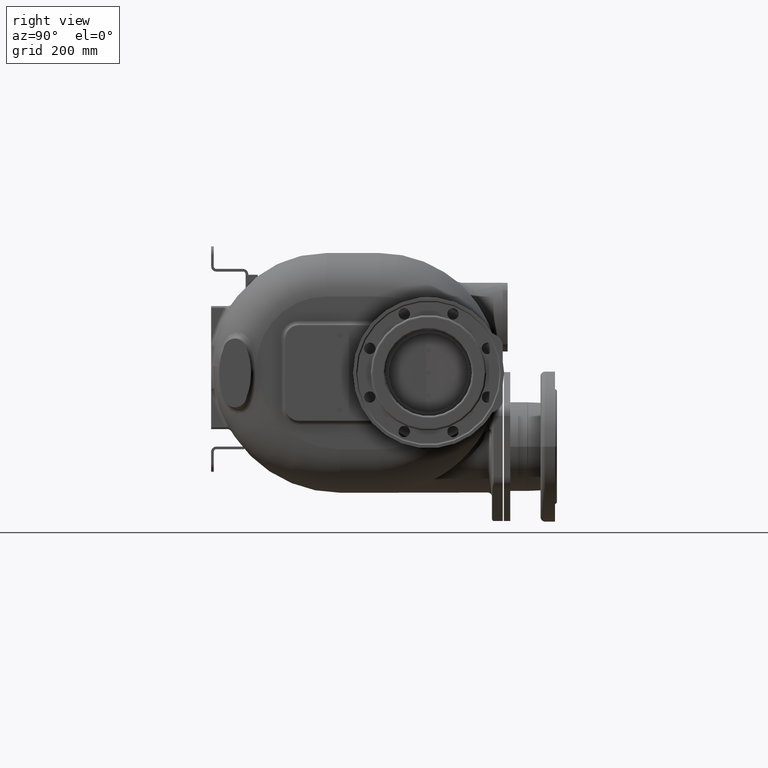
[diagram: clean part render]
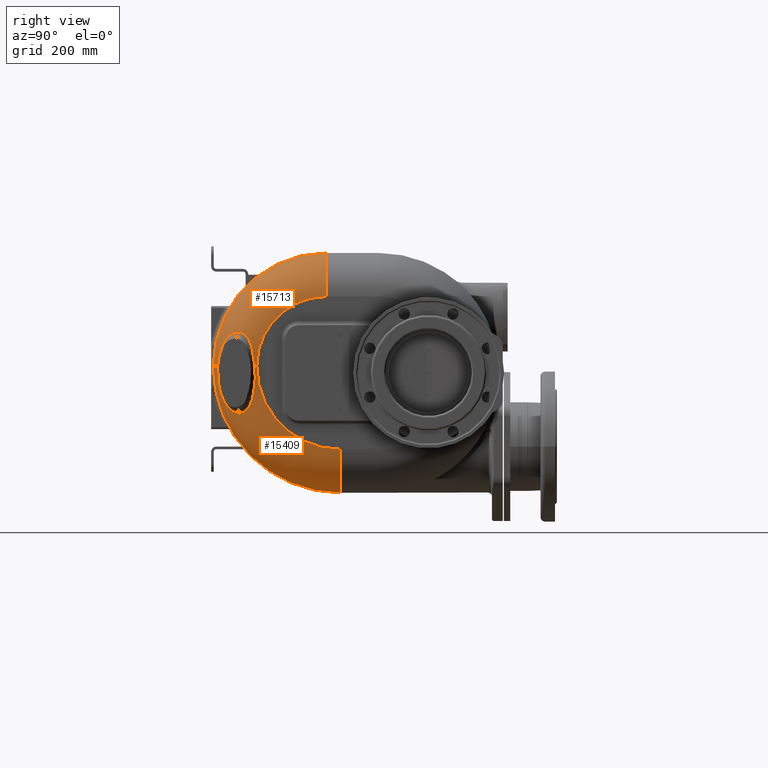
[diagram: same view with one multi-face feature highlighted, each face labeled with its STEP entity id]
A machine part, right view. The highlighted faces form ONE feature: a constant-radius fillet chain: 2 tangent blend faces with common blend radius 82 mm. The faces share edges in the B-rep.
Their STEP definitions:
[1] entity #15713 (Torus):
#2081=CARTESIAN_POINT('',(1.52E2,2.17E2,-1.3E1));
#2082=DIRECTION('',(1.E0,0.E0,0.E0));
#2083=DIRECTION('',(0.E0,0.E0,1.E0));
#2084=AXIS2_PLACEMENT_3D('',#2081,#2082,#2083);
#2678=CARTESIAN_POINT('',(1.879654239546E2,1.230815323413E1,-1.3E1));
#2849=CARTESIAN_POINT('',(2.339353656889E2,8.274487336276E1,-1.3E1));
#2851=CARTESIAN_POINT('',(1.52E2,8.6E1,-1.3E1));
#2852=DIRECTION('',(0.E0,0.E0,-1.E0));
#2853=DIRECTION('',(1.E0,0.E0,0.E0));
#2854=AXIS2_PLACEMENT_3D('',#2851,#2852,#2853);
#2856=CARTESIAN_POINT('',(1.52E2,8.6E1,-1.3E1));
#2857=DIRECTION('',(0.E0,0.E0,-1.E0));
#2858=DIRECTION('',(4.386027311538E-1,-8.986810581204E-1,0.E0));
#2859=AXIS2_PLACEMENT_3D('',#2856,#2857,#2858);
#2871=CARTESIAN_POINT('',(2.339353656889E2,8.274487336276E1,-1.3E1));
#2872=CARTESIAN_POINT('',(2.339339644732E2,8.270918535156E1,-1.256129048278E1));
#2873=CARTESIAN_POINT('',(2.339307538358E2,8.263444731143E1,-1.168397406638E1));
#2874=CARTESIAN_POINT('',(2.339248748706E2,8.251323932024E1,-1.036713794622E1));
#2875=CARTESIAN_POINT('',(2.339178202315E2,8.238424142135E1,-9.050543589567E0));
#2876=CARTESIAN_POINT('',(2.339095936351E2,8.224952458407E1,-7.739844715712E0));
#2877=CARTESIAN_POINT('',(2.339000121001E2,8.210820254393E1,-6.417769285520E0));
#2878=CARTESIAN_POINT('',(2.338883148047E2,8.195227867606E1,-5.020393056383E0));
#2879=CARTESIAN_POINT('',(2.338734936988E2,8.177392797552E1,-3.494495743191E0));
#2880=CARTESIAN_POINT('',(2.338538358736E2,8.156191228367E1,-1.775377750045E0));
#2881=CARTESIAN_POINT('',(2.338289329511E2,8.132280882452E1,5.324368321622E-2));
#2882=CARTESIAN_POINT('',(2.337992401276E2,8.106855703263E1,1.887313419874E0));
#2883=CARTESIAN_POINT('',(2.337656302920E2,8.080967314629E1,3.653805296860E0));
#2884=CARTESIAN_POINT('',(2.337275543737E2,8.054340450761E1,5.375866464324E0));
#2885=CARTESIAN_POINT('',(2.336844166229E2,8.026789856882E1,7.066487727343E0));
#2886=CARTESIAN_POINT('',(2.336357899395E2,7.998270951425E1,8.728028116095E0));
#2887=CARTESIAN_POINT('',(2.335815502860E2,7.968902893449E1,1.035333559501E1));
#2888=CARTESIAN_POINT('',(2.335216481662E2,7.938801502104E1,1.193744209344E1));
#2889=CARTESIAN_POINT('',(2.334559376270E2,7.907993084541E1,1.347967238423E1));
#2890=CARTESIAN_POINT('',(2.333843044380E2,7.876507160544E1,1.497973951607E1));
#2891=CARTESIAN_POINT('',(2.333066912429E2,7.844383220158E1,1.643721364817E1));
#2892=CARTESIAN_POINT('',(2.332230771701E2,7.811651043918E1,1.785149341278E1));
#2893=CARTESIAN_POINT('',(2.331335127621E2,7.778360178184E1,1.922202328566E1));
#2894=CARTESIAN_POINT('',(2.330380774816E2,7.744552878494E1,2.054856448182E1));
#2895=CARTESIAN_POINT('',(2.329368645141E2,7.710259193413E1,2.183111608475E1));
#2896=CARTESIAN_POINT('',(2.328300472482E2,7.675533797245E1,2.306963781450E1));
#2897=CARTESIAN_POINT('',(2.327177076246E2,7.640385501058E1,2.426530876193E1));
#2898=CARTESIAN_POINT('',(2.325999193408E2,7.604816075520E1,2.541938724040E1));
#2899=CARTESIAN_POINT('',(2.324767596776E2,7.568833425724E1,2.653342457296E1));
#2900=CARTESIAN_POINT('',(2.323481518404E2,7.532400015638E1,2.761015024374E1));
#2901=CARTESIAN_POINT('',(2.322139510086E2,7.495464611099E1,2.865237911781E1));
#2902=CARTESIAN_POINT('',(2.320740892132E2,7.458006964310E1,2.966207516733E1));
#2903=CARTESIAN_POINT('',(2.319286400776E2,7.420042738371E1,3.063998031404E1));
#2904=CARTESIAN_POINT('',(2.317776356035E2,7.381577752907E1,3.158720374411E1));
#2905=CARTESIAN_POINT('',(2.316211979662E2,7.342641366714E1,3.250432554186E1));
#2906=CARTESIAN_POINT('',(2.314594500652E2,7.303251104768E1,3.339169495827E1));
#2907=CARTESIAN_POINT('',(2.312925490605E2,7.263438612798E1,3.424979410977E1));
#2908=CARTESIAN_POINT('',(2.311205674178E2,7.223213280471E1,3.507955722668E1));
#2909=CARTESIAN_POINT('',(2.309435207764E2,7.182564430214E1,3.588189817660E1));
#2910=CARTESIAN_POINT('',(2.307614536523E2,7.141498320171E1,3.665779853056E1));
#2911=CARTESIAN_POINT('',(2.305744059701E2,7.100014094816E1,3.740801023703E1));
#2912=CARTESIAN_POINT('',(2.303823834907E2,7.058101870809E1,3.813329278474E1));
#2913=CARTESIAN_POINT('',(2.301854128517E2,7.015765656594E1,3.883450025605E1));
#2914=CARTESIAN_POINT('',(2.299834664731E2,6.972990349414E1,3.951237462571E1));
#2915=CARTESIAN_POINT('',(2.297764929224E2,6.929758768996E1,4.016768800060E1));
#2916=CARTESIAN_POINT('',(2.295644542256E2,6.886062572936E1,4.080121378226E1));
#2917=CARTESIAN_POINT('',(2.293472636159E2,6.841877867717E1,4.141360068403E1));
#2918=CARTESIAN_POINT('',(2.291248160681E2,6.797182142857E1,4.200554421702E1));
#2919=CARTESIAN_POINT('',(2.288970437834E2,6.751962679026E1,4.257758137256E1));
#2920=CARTESIAN_POINT('',(2.286638501019E2,6.706198749251E1,4.313016548819E1));
#2921=CARTESIAN_POINT('',(2.284250912509E2,6.659864058606E1,4.366384501044E1));
#2922=CARTESIAN_POINT('',(2.281805225759E2,6.612914416089E1,4.417929049786E1));
#2923=CARTESIAN_POINT('',(2.279297836645E2,6.565284767876E1,4.467722306659E1));
#2924=CARTESIAN_POINT('',(2.276728614600E2,6.516978432006E1,4.515756570396E1));
#2925=CARTESIAN_POINT('',(2.274100852436E2,6.468063576325E1,4.561971974209E1));
#2926=CARTESIAN_POINT('',(2.271417263251E2,6.418592589584E1,4.606325385210E1));
#2927=CARTESIAN_POINT('',(2.268682170688E2,6.368646818606E1,4.648762737945E1));
#2928=CARTESIAN_POINT('',(2.265900742769E2,6.318321790210E1,4.689238022163E1));
#2929=CARTESIAN_POINT('',(2.263077047150E2,6.267685632582E1,4.727725715181E1));
#2930=CARTESIAN_POINT('',(2.260209648776E2,6.216711793744E1,4.764290213848E1));
#2931=CARTESIAN_POINT('',(2.257297265756E2,6.165376263078E1,4.798979667899E1));
#2932=CARTESIAN_POINT('',(2.254338632679E2,6.113653951493E1,4.831828588991E1));
#2933=CARTESIAN_POINT('',(2.251332982868E2,6.061534301880E1,4.862872200350E1));
#2934=CARTESIAN_POINT('',(2.248279083304E2,6.008995198208E1,4.892134581685E1));
#2935=CARTESIAN_POINT('',(2.245175844838E2,5.956019122943E1,4.919635925460E1));
#2936=CARTESIAN_POINT('',(2.242022110069E2,5.902590062920E1,4.945397058890E1));
#2937=CARTESIAN_POINT('',(2.238816515772E2,5.848685258882E1,4.969425165832E1));
#2938=CARTESIAN_POINT('',(2.235558123510E2,5.794293871916E1,4.99172995E1));
#2939=CARTESIAN_POINT('',(2.232245895577E2,5.739401697714E1,5.012312469782E1));
#2940=CARTESIAN_POINT('',(2.228878748252E2,5.683993559182E1,5.031168277857E1));
#2941=CARTESIAN_POINT('',(2.225455628529E2,5.628058327930E1,5.048296771954E1));
#2942=CARTESIAN_POINT('',(2.221975363779E2,5.571579241819E1,5.063683661134E1));
#2943=CARTESIAN_POINT('',(2.218437344921E2,5.514552692718E1,5.077317893754E1));
#2944=CARTESIAN_POINT('',(2.214841588766E2,5.456984548299E1,5.089182398781E1));
#2945=CARTESIAN_POINT('',(2.211188166099E2,5.398877929814E1,5.099250061878E1));
#2946=CARTESIAN_POINT('',(2.207477099993E2,5.340240239487E1,5.107505531257E1));
#2947=CARTESIAN_POINT('',(2.204964858468E2,5.300800675888E1,5.111785080806E1));
#2948=CARTESIAN_POINT('',(2.203699161142E2,5.280994129624E1,5.113614340283E1));
#2950=CARTESIAN_POINT('',(2.203699161142E2,5.280994129624E1,5.113614340283E1));
#2951=CARTESIAN_POINT('',(2.202355517051E2,5.259968005971E1,5.115556259065E1));
#2952=CARTESIAN_POINT('',(2.199644954461E2,5.217714172881E1,5.118797655465E1));
#2953=CARTESIAN_POINT('',(2.195508804671E2,5.153731362659E1,5.121695989171E1));
#2954=CARTESIAN_POINT('',(2.191302842757E2,5.089161747689E1,5.122596117740E1));
#2955=CARTESIAN_POINT('',(2.187027447084E2,5.024019457364E1,5.121462866742E1));
#2956=CARTESIAN_POINT('',(2.182683175963E2,4.958319534821E1,5.118257060104E1));
#2957=CARTESIAN_POINT('',(2.178270752906E2,4.892078522302E1,5.112937018453E1));
#2958=CARTESIAN_POINT('',(2.173791715685E2,4.825325607924E1,5.105464352236E1));
#2959=CARTESIAN_POINT('',(2.169248260340E2,4.758097498180E1,5.095799038534E1));
#2960=CARTESIAN_POINT('',(2.164642743613E2,4.690432853518E1,5.083904665784E1));
#2961=CARTESIAN_POINT('',(2.159977076950E2,4.622361675230E1,5.069741657564E1));
#2962=CARTESIAN_POINT('',(2.155253400082E2,4.553916222422E1,5.053270803912E1));
#2963=CARTESIAN_POINT('',(2.150474041747E2,4.485130835182E1,5.034454790076E1));
#2964=CARTESIAN_POINT('',(2.145641463825E2,4.416039643838E1,5.013254082303E1));
#2965=CARTESIAN_POINT('',(2.140758391789E2,4.346680435508E1,4.989633194563E1));
#2966=CARTESIAN_POINT('',(2.135827540378E2,4.277088650493E1,4.963553908855E1));
#2967=CARTESIAN_POINT('',(2.130851614447E2,4.207298571753E1,4.934977864852E1));
#2968=CARTESIAN_POINT('',(2.125833594714E2,4.137348053038E1,4.903870257456E1));
#2969=CARTESIAN_POINT('',(2.120776264426E2,4.067269569151E1,4.870190339819E1));
#2970=CARTESIAN_POINT('',(2.115682485114E2,3.997097348886E1,4.833901633601E1));
#2971=CARTESIAN_POINT('',(2.110555319002E2,3.926866514178E1,4.794965848575E1));
#2972=CARTESIAN_POINT('',(2.105397446443E2,3.856605775487E1,4.753339813580E1));
#2973=CARTESIAN_POINT('',(2.100211791531E2,3.786348251660E1,4.708986181020E1));
#2974=CARTESIAN_POINT('',(2.095001244037E2,3.716123454785E1,4.661858934816E1));
#2975=CARTESIAN_POINT('',(2.089768261650E2,3.645956512023E1,4.611912046568E1));
#2976=CARTESIAN_POINT('',(2.084515717114E2,3.575877841253E1,4.559101802805E1));
#2977=CARTESIAN_POINT('',(2.079246178956E2,3.505911240452E1,4.503372717564E1));
#2978=CARTESIAN_POINT('',(2.073961977937E2,3.436080897712E1,4.444675373900E1));
#2979=CARTESIAN_POINT('',(2.068665961006E2,3.366414721521E1,4.382954065504E1));
#2980=CARTESIAN_POINT('',(2.063360213508E2,3.296931637218E1,4.318144414518E1));
#2981=CARTESIAN_POINT('',(2.058047027587E2,3.227656122988E1,4.250189044186E1));
#2982=CARTESIAN_POINT('',(2.052728940477E2,3.158611582031E1,4.179015341074E1));
#2983=CARTESIAN_POINT('',(2.047407573903E2,3.089814434724E1,4.104548587728E1));
#2984=CARTESIAN_POINT('',(2.042085208540E2,3.021289865126E1,4.026716732901E1));
#2985=CARTESIAN_POINT('',(2.036763940355E2,2.953058091944E1,3.945428812079E1));
#2986=CARTESIAN_POINT('',(2.031445256708E2,2.885138762914E1,3.860600305143E1));
#2987=CARTESIAN_POINT('',(2.026131611364E2,2.817560414608E1,3.772139740813E1));
#2988=CARTESIAN_POINT('',(2.020824644044E2,2.750343857116E1,3.679940892308E1));
#2989=CARTESIAN_POINT('',(2.015526038285E2,2.683516378554E1,3.583906911427E1));
#2990=CARTESIAN_POINT('',(2.010238282915E2,2.617110833592E1,3.483924698788E1));
#2991=CARTESIAN_POINT('',(2.004962870865E2,2.551155164353E1,3.379876717935E1));
#2992=CARTESIAN_POINT('',(1.999701917820E2,2.485688017004E1,3.271651960623E1));
#2993=CARTESIAN_POINT('',(1.994457916515E2,2.420750162905E1,3.159118991135E1));
#2994=CARTESIAN_POINT('',(1.989232518480E2,2.356382868891E1,3.042153932221E1));
#2995=CARTESIAN_POINT('',(1.984028472202E2,2.292639702719E1,2.920630234250E1));
#2996=CARTESIAN_POINT('',(1.978848334432E2,2.229575222162E1,2.794408981621E1));
#2997=CARTESIAN_POINT('',(1.973694225780E2,2.167249351980E1,2.663363988729E1));
#2998=CARTESIAN_POINT('',(1.968569616203E2,2.105735104079E1,2.527360680169E1));
#2999=CARTESIAN_POINT('',(1.963477426195E2,2.045108144680E1,2.386267689546E1));
#3000=CARTESIAN_POINT('',(1.958420414435E2,1.985451091179E1,2.239963560414E1));
#3001=CARTESIAN_POINT('',(1.953403086964E2,1.926863760247E1,2.088326811754E1));
#3002=CARTESIAN_POINT('',(1.948428729198E2,1.869446400472E1,1.931250183827E1));
#3003=CARTESIAN_POINT('',(1.943501258600E2,1.813310645740E1,1.768634615939E1));
#3004=CARTESIAN_POINT('',(1.938626439778E2,1.758588809763E1,1.600407376614E1));
#3005=CARTESIAN_POINT('',(1.933807928541E2,1.705406625130E1,1.426505908699E1));
#3006=CARTESIAN_POINT('',(1.929051663265E2,1.653912214458E1,1.246896454102E1));
#3007=CARTESIAN_POINT('',(1.924364460983E2,1.604267444894E1,1.061591930933E1));
#3008=CARTESIAN_POINT('',(1.919750507736E2,1.556621331966E1,8.706057921342E0));
#3009=CARTESIAN_POINT('',(1.915218840986E2,1.511160630259E1,6.740329052153E0));
#3010=CARTESIAN_POINT('',(1.910776705650E2,1.468063171606E1,4.720072552911E0));
#3011=CARTESIAN_POINT('',(1.906430190465E2,1.427499525747E1,2.646786215604E0));
#3012=CARTESIAN_POINT('',(1.902191792420E2,1.389681565326E1,5.236263410973E-1));
#3013=CARTESIAN_POINT('',(1.898068135713E2,1.354777004749E1,-1.646410742775E0));
#3014=CARTESIAN_POINT('',(1.894071186577E2,1.322978380528E1,-3.858886386441E0));
#3015=CARTESIAN_POINT('',(1.890217867045E2,1.294492226024E1,-6.107075375706E0));
#3016=CARTESIAN_POINT('',(1.886516205833E2,1.269449480305E1,-8.384185335522E0));
#3017=CARTESIAN_POINT('',(1.882980102670E2,1.247983622596E1,-1.068410366528E1));
#3018=CARTESIAN_POINT('',(1.880743577142E2,1.236131586702E1,-1.222630023022E1));
#3019=CARTESIAN_POINT('',(1.879654239546E2,1.230815323413E1,-1.3E1));
#3021=CARTESIAN_POINT('',(1.52E2,2.17E2,1.18E2));
#3022=DIRECTION('',(0.E0,-1.E0,0.E0));
#3023=DIRECTION('',(1.E0,0.E0,0.E0));
#3024=AXIS2_PLACEMENT_3D('',#3021,#3022,#3023);
#3394=CARTESIAN_POINT('',(2.34E2,2.17E2,-1.3E1));
#3395=DIRECTION('',(1.E0,0.E0,0.E0));
#3396=DIRECTION('',(0.E0,0.E0,1.E0));
#3397=AXIS2_PLACEMENT_3D('',#3394,#3395,#3396);
#10940=CARTESIAN_POINT('',(1.52E2,2.170000000004E2,2.E2));
#10942=VERTEX_POINT('',#10940);
#10997=CARTESIAN_POINT('',(2.34E2,8.6E1,-1.3E1));
#10998=VERTEX_POINT('',#10997);
#10999=CARTESIAN_POINT('',(1.52E2,4.E0,-1.3E1));
#11000=VERTEX_POINT('',#10999);
#11001=CARTESIAN_POINT('',(2.34E2,2.17E2,1.18E2));
#11002=VERTEX_POINT('',#11001);
#11005=VERTEX_POINT('',#2678);
#11008=VERTEX_POINT('',#2849);
#11010=VERTEX_POINT('',#2948);
#15696=CARTESIAN_POINT('',(1.52E2,2.17E2,-1.3E1));
#15697=DIRECTION('',(-1.E0,0.E0,0.E0));
#15698=DIRECTION('',(0.E0,7.929630381461E-3,9.999685599868E-1));
#15699=AXIS2_PLACEMENT_3D('',#15696,#15697,#15698);
#15700=TOROIDAL_SURFACE('',#15699,1.31E2,8.2E1);
#15702=ORIENTED_EDGE('',*,*,#15701,.T.);
#15703=ORIENTED_EDGE('',*,*,#15686,.T.);
#15704=ORIENTED_EDGE('',*,*,#15405,.T.);
#15705=ORIENTED_EDGE('',*,*,#14891,.F.);
#15707=ORIENTED_EDGE('',*,*,#15706,.F.);
#15709=ORIENTED_EDGE('',*,*,#15708,.T.);
#15710=ORIENTED_EDGE('',*,*,#15398,.T.);
#15711=EDGE_LOOP('',(#15702,#15703,#15704,#15705,#15707,#15709,#15710));
#15712=FACE_OUTER_BOUND('',#15711,.F.);
#15713=ADVANCED_FACE('',(#15712),#15700,.T.);
#2085=CIRCLE('',#2084,2.13E2);
#2855=CIRCLE('',#2854,8.2E1);
#2860=CIRCLE('',#2859,8.2E1);
#2949=B_SPLINE_CURVE_WITH_KNOTS('',3,(#2871,#2872,#2873,#2874,#2875,#2876,#2877,
#2878,#2879,#2880,#2881,#2882,#2883,#2884,#2885,#2886,#2887,#2888,#2889,#2890,
#2891,#2892,#2893,#2894,#2895,#2896,#2897,#2898,#2899,#2900,#2901,#2902,#2903,
#2904,#2905,#2906,#2907,#2908,#2909,#2910,#2911,#2912,#2913,#2914,#2915,#2916,
#2917,#2918,#2919,#2920,#2921,#2922,#2923,#2924,#2925,#2926,#2927,#2928,#2929,
#2930,#2931,#2932,#2933,#2934,#2935,#2936,#2937,#2938,#2939,#2940,#2941,#2942,
#2943,#2944,#2945,#2946,#2947,#2948),.UNSPECIFIED.,.F.,.F.,(4,1,1,1,1,1,1,1,1,1,
1,1,1,1,1,1,1,1,1,1,1,1,1,1,1,1,1,1,1,1,1,1,1,1,1,1,1,1,1,1,1,1,1,1,1,1,1,1,1,1,
1,1,1,1,1,1,1,1,1,1,1,1,1,1,1,1,1,1,1,1,1,1,1,1,1,4),(0.E0,1.333333333333E-2,
2.666666666667E-2,4.E-2,5.333333333333E-2,6.666666666667E-2,8.E-2,
9.333333333333E-2,1.066666666667E-1,1.2E-1,1.333333333333E-1,1.466666666667E-1,
1.6E-1,1.733333333333E-1,1.866666666667E-1,2.E-1,2.133333333333E-1,
2.266666666667E-1,2.4E-1,2.533333333333E-1,2.666666666667E-1,2.8E-1,
2.933333333333E-1,3.066666666667E-1,3.2E-1,3.333333333333E-1,3.466666666667E-1,
3.6E-1,3.733333333333E-1,3.866666666667E-1,4.E-1,4.133333333333E-1,
4.266666666667E-1,4.4E-1,4.533333333333E-1,4.666666666667E-1,4.8E-1,
4.933333333333E-1,5.066666666667E-1,5.2E-1,5.333333333333E-1,5.466666666667E-1,
5.6E-1,5.733333333333E-1,5.866666666667E-1,6.E-1,6.133333333333E-1,
6.266666666667E-1,6.4E-1,6.533333333333E-1,6.666666666667E-1,6.8E-1,
6.933333333333E-1,7.066666666667E-1,7.2E-1,7.333333333333E-1,7.466666666667E-1,
7.6E-1,7.733333333333E-1,7.866666666667E-1,8.E-1,8.133333333333E-1,
8.266666666667E-1,8.4E-1,8.533333333333E-1,8.666666666667E-1,8.8E-1,
8.933333333333E-1,9.066666666667E-1,9.2E-1,9.333333333333E-1,9.466666666667E-1,
9.6E-1,9.733333333333E-1,9.866666666667E-1,1.E0),.UNSPECIFIED.);
#3020=B_SPLINE_CURVE_WITH_KNOTS('',3,(#2950,#2951,#2952,#2953,#2954,#2955,#2956,
#2957,#2958,#2959,#2960,#2961,#2962,#2963,#2964,#2965,#2966,#2967,#2968,#2969,
#2970,#2971,#2972,#2973,#2974,#2975,#2976,#2977,#2978,#2979,#2980,#2981,#2982,
#2983,#2984,#2985,#2986,#2987,#2988,#2989,#2990,#2991,#2992,#2993,#2994,#2995,
#2996,#2997,#2998,#2999,#3000,#3001,#3002,#3003,#3004,#3005,#3006,#3007,#3008,
#3009,#3010,#3011,#3012,#3013,#3014,#3015,#3016,#3017,#3018,#3019),
.UNSPECIFIED.,.F.,.F.,(4,1,1,1,1,1,1,1,1,1,1,1,1,1,1,1,1,1,1,1,1,1,1,1,1,1,1,1,
1,1,1,1,1,1,1,1,1,1,1,1,1,1,1,1,1,1,1,1,1,1,1,1,1,1,1,1,1,1,1,1,1,1,1,1,1,1,1,
4),(0.E0,1.492537313433E-2,2.985074626866E-2,4.477611940299E-2,
5.970149253731E-2,7.462686567164E-2,8.955223880597E-2,1.044776119403E-1,
1.194029850746E-1,1.343283582090E-1,1.492537313433E-1,1.641791044776E-1,
1.791044776119E-1,1.940298507463E-1,2.089552238806E-1,2.238805970149E-1,
2.388059701493E-1,2.537313432836E-1,2.686567164179E-1,2.835820895522E-1,
2.985074626866E-1,3.134328358209E-1,3.283582089552E-1,3.432835820896E-1,
3.582089552239E-1,3.731343283582E-1,3.880597014925E-1,4.029850746269E-1,
4.179104477612E-1,4.328358208955E-1,4.477611940299E-1,4.626865671642E-1,
4.776119402985E-1,4.925373134328E-1,5.074626865672E-1,5.223880597015E-1,
5.373134328358E-1,5.522388059701E-1,5.671641791045E-1,5.820895522388E-1,
5.970149253731E-1,6.119402985075E-1,6.268656716418E-1,6.417910447761E-1,
6.567164179104E-1,6.716417910448E-1,6.865671641791E-1,7.014925373134E-1,
7.164179104478E-1,7.313432835821E-1,7.462686567164E-1,7.611940298507E-1,
7.761194029851E-1,7.910447761194E-1,8.059701492537E-1,8.208955223881E-1,
8.358208955224E-1,8.507462686567E-1,8.656716417910E-1,8.805970149254E-1,
8.955223880597E-1,9.104477611940E-1,9.253731343284E-1,9.402985074627E-1,
9.552238805970E-1,9.701492537313E-1,9.850746268657E-1,1.E0),.UNSPECIFIED.);
#3025=CIRCLE('',#3024,8.2E1);
#3398=CIRCLE('',#3397,1.31E2);
#14891=EDGE_CURVE('',#10942,#11000,#2085,.T.);
#15398=EDGE_CURVE('',#10998,#11008,#2855,.T.);
#15405=EDGE_CURVE('',#11005,#11000,#2860,.T.);
#15686=EDGE_CURVE('',#11010,#11005,#3020,.T.);
#15701=EDGE_CURVE('',#11008,#11010,#2949,.T.);
#15706=EDGE_CURVE('',#11002,#10942,#3025,.T.);
#15708=EDGE_CURVE('',#11002,#10998,#3398,.T.);
[2] entity #15409 (Torus):
#2457=CARTESIAN_POINT('',(1.52E2,2.43E2,-1.3E1));
#2458=DIRECTION('',(1.E0,0.E0,0.E0));
#2459=DIRECTION('',(0.E0,-1.E0,0.E0));
#2460=AXIS2_PLACEMENT_3D('',#2457,#2458,#2459);
#2678=CARTESIAN_POINT('',(1.879654239546E2,1.230815323413E1,-1.3E1));
#2679=CARTESIAN_POINT('',(1.878597585176E2,1.225661739816E1,-1.376026139655E1));
#2680=CARTESIAN_POINT('',(1.876545075377E2,1.216445605205E1,-1.529365468113E1));
#2681=CARTESIAN_POINT('',(1.873644305637E2,1.206021145663E1,-1.763844126785E1));
#2682=CARTESIAN_POINT('',(1.870946353069E2,1.199151920316E1,-2.000795915639E1));
#2683=CARTESIAN_POINT('',(1.868476390603E2,1.195950947066E1,-2.238924805052E1));
#2684=CARTESIAN_POINT('',(1.866261787234E2,1.196481531273E1,-2.476795072151E1));
#2685=CARTESIAN_POINT('',(1.864304068121E2,1.200620604473E1,-2.712859249586E1));
#2686=CARTESIAN_POINT('',(1.862606852467E2,1.208243736793E1,-2.946257015232E1));
#2687=CARTESIAN_POINT('',(1.861179847224E2,1.219270973709E1,-3.176662612475E1));
#2688=CARTESIAN_POINT('',(1.860030004942E2,1.233585356926E1,-3.403581585273E1));
#2689=CARTESIAN_POINT('',(1.859140995412E2,1.251020644171E1,-3.627229463211E1));
#2690=CARTESIAN_POINT('',(1.858508492987E2,1.271497327613E1,-3.847958321223E1));
#2691=CARTESIAN_POINT('',(1.858140097635E2,1.294990102673E1,-4.065945579635E1));
#2692=CARTESIAN_POINT('',(1.858036471050E2,1.321338656094E1,-4.280483932065E1));
#2693=CARTESIAN_POINT('',(1.858193349035E2,1.350340534314E1,-4.490898406715E1));
#2694=CARTESIAN_POINT('',(1.858602276142E2,1.381798083486E1,-4.696811214862E1));
#2695=CARTESIAN_POINT('',(1.859257219766E2,1.415579176392E1,-4.898239632569E1));
#2696=CARTESIAN_POINT('',(1.860156626992E2,1.451565976184E1,-5.095122830451E1));
#2697=CARTESIAN_POINT('',(1.861294548987E2,1.489631618372E1,-5.287448945332E1));
#2698=CARTESIAN_POINT('',(1.862663673200E2,1.529649603582E1,-5.475217975887E1));
#2699=CARTESIAN_POINT('',(1.864258386185E2,1.571505983844E1,-5.658430911266E1));
#2700=CARTESIAN_POINT('',(1.866070983612E2,1.615078314963E1,-5.837074012507E1));
#2701=CARTESIAN_POINT('',(1.868094743284E2,1.660252123434E1,-6.011134169477E1));
#2702=CARTESIAN_POINT('',(1.870323306568E2,1.706929118191E1,-6.180650401040E1));
#2703=CARTESIAN_POINT('',(1.872749644562E2,1.755023081781E1,-6.345708833395E1));
#2704=CARTESIAN_POINT('',(1.875367340674E2,1.804455879828E1,-6.506392207577E1));
#2705=CARTESIAN_POINT('',(1.878169921634E2,1.855148627307E1,-6.662758782149E1));
#2706=CARTESIAN_POINT('',(1.881150473804E2,1.907027267473E1,-6.814877954289E1));
#2707=CARTESIAN_POINT('',(1.884302620969E2,1.960026472696E1,-6.962825701787E1));
#2708=CARTESIAN_POINT('',(1.887620625203E2,2.014090757351E1,-7.106686328600E1));
#2709=CARTESIAN_POINT('',(1.891097841148E2,2.069166002071E1,-7.246550120923E1));
#2710=CARTESIAN_POINT('',(1.894729005287E2,2.125204077906E1,-7.382487416988E1));
#2711=CARTESIAN_POINT('',(1.898508006554E2,2.182160480083E1,-7.514584364394E1));
#2712=CARTESIAN_POINT('',(1.902429174931E2,2.239993006809E1,-7.642913956962E1));
#2713=CARTESIAN_POINT('',(1.906487657760E2,2.298668212880E1,-7.767552398689E1));
#2714=CARTESIAN_POINT('',(1.910677309314E2,2.358149082989E1,-7.888576985654E1));
#2715=CARTESIAN_POINT('',(1.914993887899E2,2.418407400324E1,-8.006049016546E1));
#2716=CARTESIAN_POINT('',(1.919431589135E2,2.479413239588E1,-8.120044158352E1));
#2717=CARTESIAN_POINT('',(1.923985819351E2,2.541139638984E1,-8.230617130400E1));
#2718=CARTESIAN_POINT('',(1.928651857984E2,2.603564341109E1,-8.337832324793E1));
#2719=CARTESIAN_POINT('',(1.933424336183E2,2.666660367838E1,-8.441744942416E1));
#2720=CARTESIAN_POINT('',(1.938299299948E2,2.730409112773E1,-8.542403707852E1));
#2721=CARTESIAN_POINT('',(1.943271213579E2,2.794786142266E1,-8.639863773790E1));
#2722=CARTESIAN_POINT('',(1.948335981261E2,2.859771554665E1,-8.734162710397E1));
#2723=CARTESIAN_POINT('',(1.953488656957E2,2.925345138207E1,-8.825348756290E1));
#2724=CARTESIAN_POINT('',(1.958724358894E2,2.991483319014E1,-8.913456287121E1));
#2725=CARTESIAN_POINT('',(1.964038807066E2,3.058167722996E1,-8.998520288461E1));
#2726=CARTESIAN_POINT('',(1.969426614428E2,3.125373265E1,-9.080575660705E1));
#2727=CARTESIAN_POINT('',(1.974883329299E2,3.193077794390E1,-9.159646458358E1));
#2728=CARTESIAN_POINT('',(1.980403872834E2,3.261257719266E1,-9.235763417658E1));
#2729=CARTESIAN_POINT('',(1.985983022457E2,3.329884725413E1,-9.308947245096E1));
#2730=CARTESIAN_POINT('',(1.991615999645E2,3.398934045332E1,-9.379219562082E1));
#2731=CARTESIAN_POINT('',(1.997297269668E2,3.468374915328E1,-9.446601459163E1));
#2732=CARTESIAN_POINT('',(2.003021514860E2,3.538175278354E1,-9.511108032380E1));
#2733=CARTESIAN_POINT('',(2.008783483699E2,3.608304335041E1,-9.572757770097E1));
#2734=CARTESIAN_POINT('',(2.014577339299E2,3.678723927880E1,-9.631564482181E1));
#2735=CARTESIAN_POINT('',(2.020397495650E2,3.749396914457E1,-9.687542552239E1));
#2736=CARTESIAN_POINT('',(2.026238254747E2,3.820284364194E1,-9.740707225209E1));
#2737=CARTESIAN_POINT('',(2.032093543361E2,3.891341207285E1,-9.791070315365E1));
#2738=CARTESIAN_POINT('',(2.037957504804E2,3.962524187092E1,-9.838647956135E1));
#2739=CARTESIAN_POINT('',(2.043824146731E2,4.033786315133E1,-9.883454646342E1));
#2740=CARTESIAN_POINT('',(2.049687380954E2,4.105077935082E1,-9.925505753493E1));
#2741=CARTESIAN_POINT('',(2.055541282094E2,4.176350713256E1,-9.964821632690E1));
#2742=CARTESIAN_POINT('',(2.061379865001E2,4.247552087592E1,-1.000141961098E2));
#2743=CARTESIAN_POINT('',(2.067197219131E2,4.318629601595E1,-1.003532162417E2));
#2744=CARTESIAN_POINT('',(2.072987562516E2,4.389531072899E1,-1.006655341026E2));
#2745=CARTESIAN_POINT('',(2.078745255877E2,4.460201882071E1,-1.009513812227E2));
#2746=CARTESIAN_POINT('',(2.084464810763E2,4.530589430924E1,-1.012110631288E2));
#2747=CARTESIAN_POINT('',(2.090140817589E2,4.600639470948E1,-1.014448930689E2));
#2748=CARTESIAN_POINT('',(2.095768072804E2,4.670296339661E1,-1.016531692826E2));
#2749=CARTESIAN_POINT('',(2.101341456767E2,4.739506297327E1,-1.018362787570E2));
#2750=CARTESIAN_POINT('',(2.106856613051E2,4.808220869340E1,-1.019946026871E2));
#2751=CARTESIAN_POINT('',(2.112309655292E2,4.876395251416E1,-1.021285401084E2));
#2752=CARTESIAN_POINT('',(2.117696682497E2,4.943985266433E1,-1.022385559754E2));
#2753=CARTESIAN_POINT('',(2.123012995434E2,5.010931049475E1,-1.023250352877E2));
#2754=CARTESIAN_POINT('',(2.128253942962E2,5.077173213461E1,-1.023884375036E2));
#2755=CARTESIAN_POINT('',(2.133416343999E2,5.142669996781E1,-1.024292874170E2));
#2756=CARTESIAN_POINT('',(2.138499404879E2,5.207405802598E1,-1.024480691578E2));
#2757=CARTESIAN_POINT('',(2.143502245665E2,5.271365277607E1,-1.024452958924E2));
#2758=CARTESIAN_POINT('',(2.148424173206E2,5.334533145546E1,-1.024214373656E2));
#2759=CARTESIAN_POINT('',(2.151651013132E2,5.376105432859E1,-1.023917653848E2));
#2760=CARTESIAN_POINT('',(2.153250893624E2,5.396756334149E1,-1.023735623590E2));
#2762=CARTESIAN_POINT('',(2.153250893624E2,5.396756334149E1,-1.023735623590E2));
#2763=CARTESIAN_POINT('',(2.154899836456E2,5.418040577107E1,-1.023548023151E2));
#2764=CARTESIAN_POINT('',(2.158173160637E2,5.460393994297E1,-1.023104568547E2));
#2765=CARTESIAN_POINT('',(2.163009889630E2,5.523280714017E1,-1.022238021597E2));
#2766=CARTESIAN_POINT('',(2.167771769248E2,5.585499479317E1,-1.021173711962E2));
#2767=CARTESIAN_POINT('',(2.172458082840E2,5.647034308824E1,-1.019914701731E2));
#2768=CARTESIAN_POINT('',(2.177068077566E2,5.707870764996E1,-1.018464553569E2));
#2769=CARTESIAN_POINT('',(2.181601244219E2,5.767995337813E1,-1.016826382571E2));
#2770=CARTESIAN_POINT('',(2.186057497364E2,5.827398759758E1,-1.015002899824E2));
#2771=CARTESIAN_POINT('',(2.190437078957E2,5.886077970168E1,-1.012997017015E2));
#2772=CARTESIAN_POINT('',(2.194740341630E2,5.944028402911E1,-1.010810873818E2));
#2773=CARTESIAN_POINT('',(2.198967945698E2,6.001251377357E1,-1.008446679428E2));
#2774=CARTESIAN_POINT('',(2.203120671915E2,6.057749165574E1,-1.005906230280E2));
#2775=CARTESIAN_POINT('',(2.207199395642E2,6.113523566308E1,-1.003190676318E2));
#2776=CARTESIAN_POINT('',(2.211205359621E2,6.168584563445E1,-1.000301291839E2));
#2777=CARTESIAN_POINT('',(2.215139733948E2,6.222937803353E1,-9.972383517867E1));
#2778=CARTESIAN_POINT('',(2.219003883761E2,6.276593755420E1,-9.940020610468E1));
#2779=CARTESIAN_POINT('',(2.222799454369E2,6.329567739642E1,-9.905921212478E1));
#2780=CARTESIAN_POINT('',(2.226527805287E2,6.381867445913E1,-9.870072359683E1));
#2781=CARTESIAN_POINT('',(2.230190851027E2,6.433514156427E1,-9.832462601731E1));
#2782=CARTESIAN_POINT('',(2.233790512113E2,6.484525875869E1,-9.793066299441E1));
#2783=CARTESIAN_POINT('',(2.237328419402E2,6.534916460305E1,-9.751854098678E1));
#2784=CARTESIAN_POINT('',(2.240806816885E2,6.584714246527E1,-9.708793795281E1));
#2785=CARTESIAN_POINT('',(2.244227320725E2,6.633932028596E1,-9.663838298663E1));
#2786=CARTESIAN_POINT('',(2.247592085529E2,6.682596561095E1,-9.616937955102E1));
#2787=CARTESIAN_POINT('',(2.250904074492E2,6.730746623121E1,-9.568020605497E1));
#2788=CARTESIAN_POINT('',(2.254166207284E2,6.778416731442E1,-9.516990105178E1));
#2789=CARTESIAN_POINT('',(2.257375960429E2,6.825570676024E1,-9.463845340749E1));
#2790=CARTESIAN_POINT('',(2.260528520023E2,6.872131426564E1,-9.408619581408E1));
#2791=CARTESIAN_POINT('',(2.263620061022E2,6.918037541747E1,-9.351348313752E1));
#2792=CARTESIAN_POINT('',(2.266648551842E2,6.963257049421E1,-9.292051090356E1));
#2793=CARTESIAN_POINT('',(2.269610902824E2,7.007736793168E1,-9.230767447881E1));
#2794=CARTESIAN_POINT('',(2.272508924306E2,7.051501293925E1,-9.167451500145E1));
#2795=CARTESIAN_POINT('',(2.275347842702E2,7.094628740214E1,-9.101966517807E1));
#2796=CARTESIAN_POINT('',(2.278131155095E2,7.137170959636E1,-9.034184770471E1));
#2797=CARTESIAN_POINT('',(2.280861351565E2,7.179168839582E1,-8.963989203577E1));
#2798=CARTESIAN_POINT('',(2.283540249448E2,7.220657372835E1,-8.891268309266E1));
#2799=CARTESIAN_POINT('',(2.286169166128E2,7.261660022696E1,-8.815895960750E1));
#2800=CARTESIAN_POINT('',(2.288750000802E2,7.302216570366E1,-8.737723015598E1));
#2801=CARTESIAN_POINT('',(2.291283936022E2,7.342360672551E1,-8.656606639165E1));
#2802=CARTESIAN_POINT('',(2.293771399198E2,7.382106711349E1,-8.572387374002E1));
#2803=CARTESIAN_POINT('',(2.296212875312E2,7.421483324874E1,-8.484910190834E1));
#2804=CARTESIAN_POINT('',(2.298608145837E2,7.460508419942E1,-8.394020360814E1));
#2805=CARTESIAN_POINT('',(2.300956111675E2,7.499178551561E1,-8.299558248560E1));
#2806=CARTESIAN_POINT('',(2.303255867086E2,7.537511004844E1,-8.201377825820E1));
#2807=CARTESIAN_POINT('',(2.305505584153E2,7.575499153185E1,-8.099330284107E1));
#2808=CARTESIAN_POINT('',(2.307702516810E2,7.613120566338E1,-7.993296953035E1));
#2809=CARTESIAN_POINT('',(2.309844371310E2,7.650374012153E1,-7.883163819618E1));
#2810=CARTESIAN_POINT('',(2.311927644989E2,7.687222009584E1,-7.768836085371E1));
#2811=CARTESIAN_POINT('',(2.313948387807E2,7.723622985746E1,-7.650269266219E1));
#2812=CARTESIAN_POINT('',(2.315903341032E2,7.759552913875E1,-7.527411403923E1));
#2813=CARTESIAN_POINT('',(2.317788014900E2,7.794945438335E1,-7.400265191709E1));
#2814=CARTESIAN_POINT('',(2.319598381832E2,7.829746257077E1,-7.268869332418E1));
#2815=CARTESIAN_POINT('',(2.321331043111E2,7.863907587551E1,-7.133260462306E1));
#2816=CARTESIAN_POINT('',(2.322982023492E2,7.897348723786E1,-6.993537698802E1));
#2817=CARTESIAN_POINT('',(2.324548460285E2,7.930011326864E1,-6.849808961521E1));
#2818=CARTESIAN_POINT('',(2.326027968110E2,7.961831031594E1,-6.702194152845E1));
#2819=CARTESIAN_POINT('',(2.327418500297E2,7.992731035411E1,-6.550845050881E1));
#2820=CARTESIAN_POINT('',(2.328719119350E2,8.022654345732E1,-6.395915130090E1));
#2821=CARTESIAN_POINT('',(2.329929405008E2,8.051533786103E1,-6.237564952816E1));
#2822=CARTESIAN_POINT('',(2.331049687289E2,8.079304686821E1,-6.075960792185E1));
#2823=CARTESIAN_POINT('',(2.332081143490E2,8.105914907924E1,-5.911272822183E1));
#2824=CARTESIAN_POINT('',(2.333025477994E2,8.131303179684E1,-5.743664692734E1));
#2825=CARTESIAN_POINT('',(2.333885100904E2,8.155417810150E1,-5.573302127279E1));
#2826=CARTESIAN_POINT('',(2.334662984915E2,8.178211521693E1,-5.400350990638E1));
#2827=CARTESIAN_POINT('',(2.335362516936E2,8.199631926993E1,-5.224971011349E1));
#2828=CARTESIAN_POINT('',(2.335987585481E2,8.219637726094E1,-5.047324209373E1));
#2829=CARTESIAN_POINT('',(2.336542364935E2,8.238185305201E1,-4.867572403003E1));
#2830=CARTESIAN_POINT('',(2.337031290474E2,8.255231865710E1,-4.685877439398E1));
#2831=CARTESIAN_POINT('',(2.337459044195E2,8.270743396138E1,-4.502401247256E1));
#2832=CARTESIAN_POINT('',(2.337830341371E2,8.284679885867E1,-4.317317117340E1));
#2833=CARTESIAN_POINT('',(2.338149994094E2,8.297008673353E1,-4.130797228240E1));
#2834=CARTESIAN_POINT('',(2.338422779801E2,8.307699894137E1,-3.943017779548E1));
#2835=CARTESIAN_POINT('',(2.338653338458E2,8.316721179099E1,-3.754163743334E1));
#2836=CARTESIAN_POINT('',(2.338846186590E2,8.324049889165E1,-3.564413520690E1));
#2837=CARTESIAN_POINT('',(2.339005533830E2,8.329659635014E1,-3.373980922601E1));
#2838=CARTESIAN_POINT('',(2.339135304241E2,8.333529157143E1,-3.183089059619E1));
#2839=CARTESIAN_POINT('',(2.339239082246E2,8.335644122611E1,-2.991951053065E1));
#2840=CARTESIAN_POINT('',(2.339320012380E2,8.335987756700E1,-2.800762062478E1));
#2841=CARTESIAN_POINT('',(2.339380795205E2,8.334552870926E1,-2.609702002695E1));
#2842=CARTESIAN_POINT('',(2.339423570814E2,8.331330581053E1,-2.419045237287E1));
#2843=CARTESIAN_POINT('',(2.339449959997E2,8.326317684529E1,-2.229114249285E1));
#2844=CARTESIAN_POINT('',(2.339461088295E2,8.319523392481E1,-2.040212507343E1));
#2845=CARTESIAN_POINT('',(2.339457535325E2,8.310958125441E1,-1.852573741721E1));
#2846=CARTESIAN_POINT('',(2.339439415077E2,8.300653699555E1,-1.666443984311E1));
#2847=CARTESIAN_POINT('',(2.339406133606E2,8.288602469471E1,-1.482025804982E1));
#2848=CARTESIAN_POINT('',(2.339373177416E2,8.279393070265E1,-1.360472970057E1));
#2849=CARTESIAN_POINT('',(2.339353656889E2,8.274487336276E1,-1.3E1));
#2851=CARTESIAN_POINT('',(1.52E2,8.6E1,-1.3E1));
#2852=DIRECTION('',(0.E0,0.E0,-1.E0));
#2853=DIRECTION('',(1.E0,0.E0,0.E0));
#2854=AXIS2_PLACEMENT_3D('',#2851,#2852,#2853);
#2856=CARTESIAN_POINT('',(1.52E2,8.6E1,-1.3E1));
#2857=DIRECTION('',(0.E0,0.E0,-1.E0));
#2858=DIRECTION('',(4.386027311538E-1,-8.986810581204E-1,0.E0));
#2859=AXIS2_PLACEMENT_3D('',#2856,#2857,#2858);
#3389=CARTESIAN_POINT('',(2.34E2,2.43E2,-1.3E1));
#3390=DIRECTION('',(1.E0,0.E0,0.E0));
#3391=DIRECTION('',(0.E0,-1.E0,0.E0));
#3392=AXIS2_PLACEMENT_3D('',#3389,#3390,#3391);
#4869=CARTESIAN_POINT('',(1.52E2,2.43E2,-1.7E2));
#4870=DIRECTION('',(0.E0,1.E0,0.E0));
#4871=DIRECTION('',(1.E0,0.E0,0.E0));
#4872=AXIS2_PLACEMENT_3D('',#4869,#4870,#4871);
#10904=CARTESIAN_POINT('',(1.52E2,2.430000000001E2,-2.52E2));
#10906=VERTEX_POINT('',#10904);
#10991=CARTESIAN_POINT('',(2.34E2,2.43E2,-1.7E2));
#10993=VERTEX_POINT('',#10991);
#10997=CARTESIAN_POINT('',(2.34E2,8.6E1,-1.3E1));
#10998=VERTEX_POINT('',#10997);
#10999=CARTESIAN_POINT('',(1.52E2,4.E0,-1.3E1));
#11000=VERTEX_POINT('',#10999);
#11005=VERTEX_POINT('',#2678);
#11006=VERTEX_POINT('',#2760);
#11008=VERTEX_POINT('',#2849);
#15389=CARTESIAN_POINT('',(1.52E2,2.43E2,-1.3E1));
#15390=DIRECTION('',(-1.E0,0.E0,0.E0));
#15391=DIRECTION('',(0.E0,-9.999750283871E-1,7.067008004339E-3));
#15392=AXIS2_PLACEMENT_3D('',#15389,#15390,#15391);
#15393=TOROIDAL_SURFACE('',#15392,1.57E2,8.2E1);
#15395=ORIENTED_EDGE('',*,*,#15394,.T.);
#15397=ORIENTED_EDGE('',*,*,#15396,.T.);
#15399=ORIENTED_EDGE('',*,*,#15398,.F.);
#15401=ORIENTED_EDGE('',*,*,#15400,.T.);
#15403=ORIENTED_EDGE('',*,*,#15402,.T.);
#15404=ORIENTED_EDGE('',*,*,#15254,.F.);
#15406=ORIENTED_EDGE('',*,*,#15405,.F.);
#15407=EDGE_LOOP('',(#15395,#15397,#15399,#15401,#15403,#15404,#15406));
#15408=FACE_OUTER_BOUND('',#15407,.F.);
#15409=ADVANCED_FACE('',(#15408),#15393,.T.);
#2461=CIRCLE('',#2460,2.39E2);
#2761=B_SPLINE_CURVE_WITH_KNOTS('',3,(#2678,#2679,#2680,#2681,#2682,#2683,#2684,
#2685,#2686,#2687,#2688,#2689,#2690,#2691,#2692,#2693,#2694,#2695,#2696,#2697,
#2698,#2699,#2700,#2701,#2702,#2703,#2704,#2705,#2706,#2707,#2708,#2709,#2710,
#2711,#2712,#2713,#2714,#2715,#2716,#2717,#2718,#2719,#2720,#2721,#2722,#2723,
#2724,#2725,#2726,#2727,#2728,#2729,#2730,#2731,#2732,#2733,#2734,#2735,#2736,
#2737,#2738,#2739,#2740,#2741,#2742,#2743,#2744,#2745,#2746,#2747,#2748,#2749,
#2750,#2751,#2752,#2753,#2754,#2755,#2756,#2757,#2758,#2759,#2760),
.UNSPECIFIED.,.F.,.F.,(4,1,1,1,1,1,1,1,1,1,1,1,1,1,1,1,1,1,1,1,1,1,1,1,1,1,1,1,
1,1,1,1,1,1,1,1,1,1,1,1,1,1,1,1,1,1,1,1,1,1,1,1,1,1,1,1,1,1,1,1,1,1,1,1,1,1,1,1,
1,1,1,1,1,1,1,1,1,1,1,1,4),(0.E0,1.25E-2,2.5E-2,3.75E-2,5.E-2,6.25E-2,7.5E-2,
8.75E-2,1.E-1,1.125E-1,1.25E-1,1.375E-1,1.5E-1,1.625E-1,1.75E-1,1.875E-1,2.E-1,
2.125E-1,2.25E-1,2.375E-1,2.5E-1,2.625E-1,2.75E-1,2.875E-1,3.E-1,3.125E-1,
3.25E-1,3.375E-1,3.5E-1,3.625E-1,3.75E-1,3.875E-1,4.E-1,4.125E-1,4.25E-1,
4.375E-1,4.5E-1,4.625E-1,4.75E-1,4.875E-1,5.E-1,5.125E-1,5.25E-1,5.375E-1,
5.5E-1,5.625E-1,5.75E-1,5.875E-1,6.E-1,6.125E-1,6.25E-1,6.375E-1,6.5E-1,
6.625E-1,6.75E-1,6.875E-1,7.E-1,7.125E-1,7.25E-1,7.375E-1,7.5E-1,7.625E-1,
7.75E-1,7.875E-1,8.E-1,8.125E-1,8.25E-1,8.375E-1,8.5E-1,8.625E-1,8.75E-1,
8.875E-1,9.E-1,9.125E-1,9.25E-1,9.375E-1,9.5E-1,9.625E-1,9.75E-1,9.875E-1,1.E0),
.UNSPECIFIED.);
#2850=B_SPLINE_CURVE_WITH_KNOTS('',3,(#2762,#2763,#2764,#2765,#2766,#2767,#2768,
#2769,#2770,#2771,#2772,#2773,#2774,#2775,#2776,#2777,#2778,#2779,#2780,#2781,
#2782,#2783,#2784,#2785,#2786,#2787,#2788,#2789,#2790,#2791,#2792,#2793,#2794,
#2795,#2796,#2797,#2798,#2799,#2800,#2801,#2802,#2803,#2804,#2805,#2806,#2807,
#2808,#2809,#2810,#2811,#2812,#2813,#2814,#2815,#2816,#2817,#2818,#2819,#2820,
#2821,#2822,#2823,#2824,#2825,#2826,#2827,#2828,#2829,#2830,#2831,#2832,#2833,
#2834,#2835,#2836,#2837,#2838,#2839,#2840,#2841,#2842,#2843,#2844,#2845,#2846,
#2847,#2848,#2849),.UNSPECIFIED.,.F.,.F.,(4,1,1,1,1,1,1,1,1,1,1,1,1,1,1,1,1,1,1,
1,1,1,1,1,1,1,1,1,1,1,1,1,1,1,1,1,1,1,1,1,1,1,1,1,1,1,1,1,1,1,1,1,1,1,1,1,1,1,1,
1,1,1,1,1,1,1,1,1,1,1,1,1,1,1,1,1,1,1,1,1,1,1,1,1,1,4),(0.E0,1.176470588235E-2,
2.352941176471E-2,3.529411764706E-2,4.705882352941E-2,5.882352941176E-2,
7.058823529412E-2,8.235294117647E-2,9.411764705882E-2,1.058823529412E-1,
1.176470588235E-1,1.294117647059E-1,1.411764705882E-1,1.529411764706E-1,
1.647058823529E-1,1.764705882353E-1,1.882352941176E-1,2.E-1,2.117647058824E-1,
2.235294117647E-1,2.352941176471E-1,2.470588235294E-1,2.588235294118E-1,
2.705882352941E-1,2.823529411765E-1,2.941176470588E-1,3.058823529412E-1,
3.176470588235E-1,3.294117647059E-1,3.411764705882E-1,3.529411764706E-1,
3.647058823529E-1,3.764705882353E-1,3.882352941176E-1,4.E-1,4.117647058824E-1,
4.235294117647E-1,4.352941176471E-1,4.470588235294E-1,4.588235294118E-1,
4.705882352941E-1,4.823529411765E-1,4.941176470588E-1,5.058823529412E-1,
5.176470588235E-1,5.294117647059E-1,5.411764705882E-1,5.529411764706E-1,
5.647058823529E-1,5.764705882353E-1,5.882352941176E-1,6.E-1,6.117647058824E-1,
6.235294117647E-1,6.352941176471E-1,6.470588235294E-1,6.588235294118E-1,
6.705882352941E-1,6.823529411765E-1,6.941176470588E-1,7.058823529412E-1,
7.176470588235E-1,7.294117647059E-1,7.411764705882E-1,7.529411764706E-1,
7.647058823529E-1,7.764705882353E-1,7.882352941176E-1,8.E-1,8.117647058824E-1,
8.235294117647E-1,8.352941176471E-1,8.470588235294E-1,8.588235294118E-1,
8.705882352941E-1,8.823529411765E-1,8.941176470588E-1,9.058823529412E-1,
9.176470588235E-1,9.294117647059E-1,9.411764705882E-1,9.529411764706E-1,
9.647058823529E-1,9.764705882353E-1,9.882352941176E-1,1.E0),.UNSPECIFIED.);
#2855=CIRCLE('',#2854,8.2E1);
#2860=CIRCLE('',#2859,8.2E1);
#3393=CIRCLE('',#3392,1.57E2);
#4873=CIRCLE('',#4872,8.2E1);
#15254=EDGE_CURVE('',#11000,#10906,#2461,.T.);
#15394=EDGE_CURVE('',#11005,#11006,#2761,.T.);
#15396=EDGE_CURVE('',#11006,#11008,#2850,.T.);
#15398=EDGE_CURVE('',#10998,#11008,#2855,.T.);
#15400=EDGE_CURVE('',#10998,#10993,#3393,.T.);
#15402=EDGE_CURVE('',#10993,#10906,#4873,.T.);
#15405=EDGE_CURVE('',#11005,#11000,#2860,.T.);